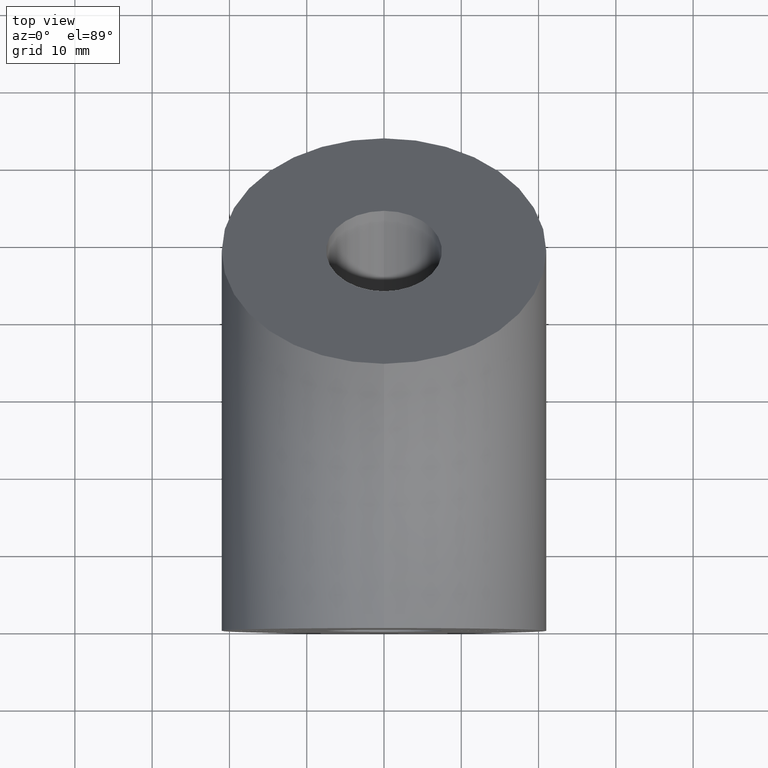
[diagram: clean part render]
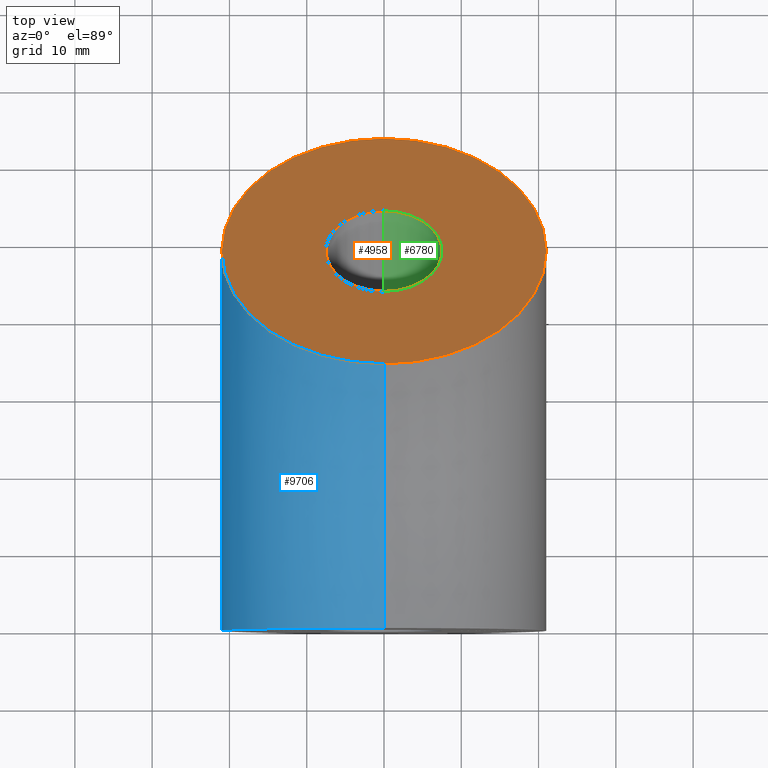
[diagram: same view with three faces highlighted in distinct colors, each labeled with its STEP entity id]
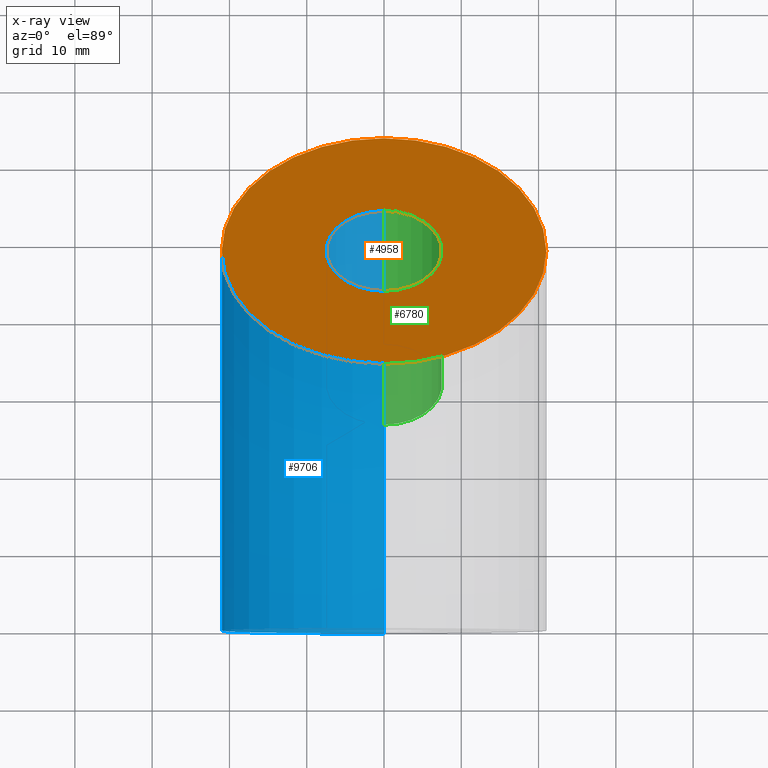
[diagram: x-ray of the same camera — body ghosted, the three highlighted faces saturated]
A machine part, top view with three faces highlighted in distinct colors.
The next image is the same camera in x-ray (body ghosted, the three faces saturated) — at least one of them is partly hidden behind the body in this view.
Their STEP definitions:

[orange] entity #4958 — the highlighted planar face has unit normal (0, 0.7071, 0.7071).
#315 = DIRECTION ( 'NONE',  ( 0.000000000000000000, -0.7071067811865439090, 0.7071067811865512365 ) ) ;
#350 = EDGE_CURVE ( 'NONE', #7985, #8511, #9840, .T. ) ;
#517 = DIRECTION ( 'NONE',  ( 0.000000000000000000, -0.7071067811865435759, 0.7071067811865514585 ) ) ;
#678 = FACE_OUTER_BOUND ( 'NONE', #10773, .T. ) ;
#815 = CIRCLE ( 'NONE', #3123, 7.499999999999995559 ) ;
#937 = FACE_BOUND ( 'NONE', #5001, .T. ) ;
#1069 = DIRECTION ( 'NONE',  ( 0.000000000000000000, -0.7071067811865436870, 0.7071067811865512365 ) ) ;
#1281 = CARTESIAN_POINT ( 'NONE',  ( -2.571758278209441661E-15, 33.94112549695410763, 35.05887450304553710 ) ) ;
#1317 = AXIS2_PLACEMENT_3D ( 'NONE', #6981, #11388, #9624 ) ;
#1473 = CARTESIAN_POINT ( 'NONE',  ( 0.000000000000000000, 63.63961030678893849, 5.360389693210381168 ) ) ;
#1974 = DIRECTION ( 'NONE',  ( 0.000000000000000000, 0.7071067811865512365, 0.7071067811865437980 ) ) ;
#3123 = AXIS2_PLACEMENT_3D ( 'NONE', #9414, #7689, #517 ) ;
#3130 = EDGE_CURVE ( 'NONE', #11001, #11010, #7497, .T. ) ;
#3176 = EDGE_CURVE ( 'NONE', #8511, #7985, #8033, .T. ) ;
#3212 = AXIS2_PLACEMENT_3D ( 'NONE', #4776, #8250, #315 ) ;
#3481 = CARTESIAN_POINT ( 'NONE',  ( 9.184850993605144000E-16, 54.09366876077061193, 14.90633123922881964 ) ) ;
#3764 = EDGE_CURVE ( 'NONE', #11010, #11001, #815, .T. ) ;
#3948 = AXIS2_PLACEMENT_3D ( 'NONE', #8712, #7199, #5577 ) ;
#4444 = AXIS2_PLACEMENT_3D ( 'NONE', #8211, #1974, #1069 ) ;
#4776 = CARTESIAN_POINT ( 'NONE',  ( 0.000000000000000000, 48.79036790187151951, 20.20963209812796890 ) ) ;
#4958 = ADVANCED_FACE ( 'NONE', ( #937, #678 ), #10065, .T. ) ;
#5001 = EDGE_LOOP ( 'NONE', ( #8692, #7545 ) ) ;
#5577 = DIRECTION ( 'NONE',  ( 0.000000000000000000, -0.7071067811865435759, 0.7071067811865514585 ) ) ;
#6981 = CARTESIAN_POINT ( 'NONE',  ( 0.000000000000000000, 48.79036790187151951, 20.20963209812796890 ) ) ;
#7099 = CARTESIAN_POINT ( 'NONE',  ( 0.000000000000000000, 43.48706704297246262, 25.51293295702707908 ) ) ;
#7199 = DIRECTION ( 'NONE',  ( -0.000000000000000000, 0.7071067811865512365, 0.7071067811865437980 ) ) ;
#7497 = CIRCLE ( 'NONE', #3948, 7.499999999999995559 ) ;
#7545 = ORIENTED_EDGE ( 'NONE', *, *, #3130, .F. ) ;
#7624 = ORIENTED_EDGE ( 'NONE', *, *, #3176, .T. ) ;
#7689 = DIRECTION ( 'NONE',  ( -0.000000000000000000, 0.7071067811865512365, 0.7071067811865437980 ) ) ;
#7985 = VERTEX_POINT ( 'NONE', #1473 ) ;
#8033 = CIRCLE ( 'NONE', #1317, 21.00000000000000000 ) ;
#8211 = CARTESIAN_POINT ( 'NONE',  ( 0.000000000000000000, 48.79036790187151951, 20.20963209812796890 ) ) ;
#8250 = DIRECTION ( 'NONE',  ( 0.000000000000000000, 0.7071067811865512365, 0.7071067811865439090 ) ) ;
#8511 = VERTEX_POINT ( 'NONE', #1281 ) ;
#8692 = ORIENTED_EDGE ( 'NONE', *, *, #3764, .F. ) ;
#8712 = CARTESIAN_POINT ( 'NONE',  ( 0.000000000000000000, 48.79036790187153372, 20.20963209812794759 ) ) ;
#9414 = CARTESIAN_POINT ( 'NONE',  ( 0.000000000000000000, 48.79036790187153372, 20.20963209812794759 ) ) ;
#9624 = DIRECTION ( 'NONE',  ( 0.000000000000000000, -0.7071067811865436870, 0.7071067811865512365 ) ) ;
#9840 = CIRCLE ( 'NONE', #4444, 21.00000000000000000 ) ;
#10065 = PLANE ( 'NONE',  #3212 ) ;
#10773 = EDGE_LOOP ( 'NONE', ( #7624, #11476 ) ) ;
#11001 = VERTEX_POINT ( 'NONE', #3481 ) ;
#11010 = VERTEX_POINT ( 'NONE', #7099 ) ;
#11388 = DIRECTION ( 'NONE',  ( 0.000000000000000000, 0.7071067811865512365, 0.7071067811865437980 ) ) ;
#11476 = ORIENTED_EDGE ( 'NONE', *, *, #350, .T. ) ;

[blue] entity #9706 — the highlighted toroidal blend (fillet) surface has major radius 69 mm and minor (blend) radius 21 mm.
#131 = CIRCLE ( 'NONE', #878, 90.00000000000001421 ) ;
#289 = DIRECTION ( 'NONE',  ( 0.000000000000000000, 0.000000000000000000, -1.000000000000000000 ) ) ;
#350 = EDGE_CURVE ( 'NONE', #7985, #8511, #9840, .T. ) ;
#396 = DIRECTION ( 'NONE',  ( 1.000000000000000000, 0.000000000000000000, 0.000000000000000000 ) ) ;
#596 = ORIENTED_EDGE ( 'NONE', *, *, #7973, .T. ) ;
#866 = VERTEX_POINT ( 'NONE', #4912 ) ;
#878 = AXIS2_PLACEMENT_3D ( 'NONE', #5020, #2337, #8604 ) ;
#1069 = DIRECTION ( 'NONE',  ( 0.000000000000000000, -0.7071067811865436870, 0.7071067811865512365 ) ) ;
#1211 = ORIENTED_EDGE ( 'NONE', *, *, #3694, .F. ) ;
#1281 = CARTESIAN_POINT ( 'NONE',  ( -2.571758278209441661E-15, 33.94112549695410763, 35.05887450304553710 ) ) ;
#1409 = FACE_OUTER_BOUND ( 'NONE', #6121, .T. ) ;
#1433 = DIRECTION ( 'NONE',  ( 0.000000000000000000, 1.000000000000000000, 0.000000000000000000 ) ) ;
#1473 = CARTESIAN_POINT ( 'NONE',  ( 0.000000000000000000, 63.63961030678893849, 5.360389693210381168 ) ) ;
#1974 = DIRECTION ( 'NONE',  ( 0.000000000000000000, 0.7071067811865512365, 0.7071067811865437980 ) ) ;
#2337 = DIRECTION ( 'NONE',  ( 1.000000000000000000, 0.000000000000000000, 0.000000000000000000 ) ) ;
#3543 = AXIS2_PLACEMENT_3D ( 'NONE', #5601, #6571, #10978 ) ;
#3694 = EDGE_CURVE ( 'NONE', #866, #7985, #131, .T. ) ;
#4444 = AXIS2_PLACEMENT_3D ( 'NONE', #8211, #1974, #1069 ) ;
#4754 = TOROIDAL_SURFACE ( 'NONE', #7002, 69.00000000000000000, 21.00000000000000000 ) ;
#4912 = CARTESIAN_POINT ( 'NONE',  ( 0.000000000000000000, 0.000000000000000000, -21.00000000000000355 ) ) ;
#5020 = CARTESIAN_POINT ( 'NONE',  ( 0.000000000000000000, 0.000000000000000000, 69.00000000000000000 ) ) ;
#5467 = ORIENTED_EDGE ( 'NONE', *, *, #350, .F. ) ;
#5601 = CARTESIAN_POINT ( 'NONE',  ( -2.571758278209441661E-15, 0.000000000000000000, 69.00000000000000000 ) ) ;
#5746 = ORIENTED_EDGE ( 'NONE', *, *, #10628, .T. ) ;
#5977 = CIRCLE ( 'NONE', #6923, 21.00000000000000000 ) ;
#6121 = EDGE_LOOP ( 'NONE', ( #1211, #596, #5746, #5467 ) ) ;
#6571 = DIRECTION ( 'NONE',  ( 1.000000000000000000, 0.000000000000000000, 0.000000000000000000 ) ) ;
#6923 = AXIS2_PLACEMENT_3D ( 'NONE', #8594, #1433, #11122 ) ;
#7002 = AXIS2_PLACEMENT_3D ( 'NONE', #11005, #396, #289 ) ;
#7793 = CIRCLE ( 'NONE', #3543, 48.00000000000000000 ) ;
#7973 = EDGE_CURVE ( 'NONE', #866, #10686, #5977, .T. ) ;
#7985 = VERTEX_POINT ( 'NONE', #1473 ) ;
#8211 = CARTESIAN_POINT ( 'NONE',  ( 0.000000000000000000, 48.79036790187151951, 20.20963209812796890 ) ) ;
#8511 = VERTEX_POINT ( 'NONE', #1281 ) ;
#8594 = CARTESIAN_POINT ( 'NONE',  ( 0.000000000000000000, 0.000000000000000000, 0.000000000000000000 ) ) ;
#8604 = DIRECTION ( 'NONE',  ( 0.000000000000000000, 0.000000000000000000, -1.000000000000000000 ) ) ;
#9706 = ADVANCED_FACE ( 'NONE', ( #1409 ), #4754, .T. ) ;
#9840 = CIRCLE ( 'NONE', #4444, 21.00000000000000000 ) ;
#9965 = CARTESIAN_POINT ( 'NONE',  ( 0.000000000000000000, 0.000000000000000000, 21.00000000000000000 ) ) ;
#10628 = EDGE_CURVE ( 'NONE', #10686, #8511, #7793, .T. ) ;
#10686 = VERTEX_POINT ( 'NONE', #9965 ) ;
#10978 = DIRECTION ( 'NONE',  ( 0.000000000000000000, 0.000000000000000000, -1.000000000000000000 ) ) ;
#11005 = CARTESIAN_POINT ( 'NONE',  ( 0.000000000000000000, 0.000000000000000000, 69.00000000000000000 ) ) ;
#11122 = DIRECTION ( 'NONE',  ( 0.000000000000000000, 0.000000000000000000, 1.000000000000000000 ) ) ;

[green] entity #6780 — the highlighted cylindrical surface (partial cylindrical patch) has radius 7.5 mm, axis along (-0, 0.7071, 0.7071).
#169 = EDGE_CURVE ( 'NONE', #10878, #1198, #3502, .T. ) ;
#517 = DIRECTION ( 'NONE',  ( 0.000000000000000000, -0.7071067811865435759, 0.7071067811865514585 ) ) ;
#540 = DIRECTION ( 'NONE',  ( 0.000000000000000000, -0.7071067811865437980, 0.7071067811865512365 ) ) ;
#661 = ORIENTED_EDGE ( 'NONE', *, *, #3764, .T. ) ;
#815 = CIRCLE ( 'NONE', #3123, 7.499999999999995559 ) ;
#907 = DIRECTION ( 'NONE',  ( -0.000000000000000000, 0.7071067811865512365, 0.7071067811865439090 ) ) ;
#1198 = VERTEX_POINT ( 'NONE', #7359 ) ;
#2419 = ORIENTED_EDGE ( 'NONE', *, *, #8859, .F. ) ;
#3123 = AXIS2_PLACEMENT_3D ( 'NONE', #9414, #7689, #517 ) ;
#3265 = EDGE_LOOP ( 'NONE', ( #2419, #3676, #10296, #661 ) ) ;
#3324 = DIRECTION ( 'NONE',  ( -0.000000000000000000, 0.7071067811865512365, 0.7071067811865437980 ) ) ;
#3481 = CARTESIAN_POINT ( 'NONE',  ( 9.184850993605144000E-16, 54.09366876077061193, 14.90633123922881964 ) ) ;
#3502 = CIRCLE ( 'NONE', #5852, 7.499999999999993783 ) ;
#3537 = CARTESIAN_POINT ( 'NONE',  ( 0.000000000000000000, 43.48706704297246262, 25.51293295702707908 ) ) ;
#3676 = ORIENTED_EDGE ( 'NONE', *, *, #169, .F. ) ;
#3764 = EDGE_CURVE ( 'NONE', #11010, #11001, #815, .T. ) ;
#3940 = DIRECTION ( 'NONE',  ( -0.000000000000000000, 0.7071067811865512365, 0.7071067811865437980 ) ) ;
#3963 = AXIS2_PLACEMENT_3D ( 'NONE', #7600, #3940, #540 ) ;
#4214 = CARTESIAN_POINT ( 'NONE',  ( 0.000000000000000000, 26.51650429449523116, 8.542370208550025268 ) ) ;
#4903 = VECTOR ( 'NONE', #10181, 999.9999999999998863 ) ;
#4920 = CARTESIAN_POINT ( 'NONE',  ( 9.184850993605144000E-16, 54.09366876077061193, 14.90633123922881786 ) ) ;
#5646 = VECTOR ( 'NONE', #907, 999.9999999999998863 ) ;
#5793 = CYLINDRICAL_SURFACE ( 'NONE', #3963, 7.499999999999993783 ) ;
#5852 = AXIS2_PLACEMENT_3D ( 'NONE', #10511, #3324, #9554 ) ;
#6780 = ADVANCED_FACE ( 'NONE', ( #7166 ), #5793, .F. ) ;
#7084 = EDGE_CURVE ( 'NONE', #10878, #11010, #10907, .T. ) ;
#7099 = CARTESIAN_POINT ( 'NONE',  ( 0.000000000000000000, 43.48706704297246262, 25.51293295702707908 ) ) ;
#7166 = FACE_OUTER_BOUND ( 'NONE', #3265, .T. ) ;
#7359 = CARTESIAN_POINT ( 'NONE',  ( 9.184850993605142028E-16, 37.12310601229337692, -2.064231509248234619 ) ) ;
#7600 = CARTESIAN_POINT ( 'NONE',  ( 0.000000000000000000, 48.79036790187153372, 20.20963209812794759 ) ) ;
#7689 = DIRECTION ( 'NONE',  ( -0.000000000000000000, 0.7071067811865512365, 0.7071067811865437980 ) ) ;
#8362 = LINE ( 'NONE', #4920, #4903 ) ;
#8859 = EDGE_CURVE ( 'NONE', #1198, #11001, #8362, .T. ) ;
#9414 = CARTESIAN_POINT ( 'NONE',  ( 0.000000000000000000, 48.79036790187153372, 20.20963209812794759 ) ) ;
#9554 = DIRECTION ( 'NONE',  ( 0.000000000000000000, -0.7071067811865437980, 0.7071067811865512365 ) ) ;
#10181 = DIRECTION ( 'NONE',  ( -0.000000000000000000, 0.7071067811865512365, 0.7071067811865439090 ) ) ;
#10296 = ORIENTED_EDGE ( 'NONE', *, *, #7084, .T. ) ;
#10511 = CARTESIAN_POINT ( 'NONE',  ( 0.000000000000000000, 31.81980515339430227, 3.239069349650895546 ) ) ;
#10878 = VERTEX_POINT ( 'NONE', #4214 ) ;
#10907 = LINE ( 'NONE', #3537, #5646 ) ;
#11001 = VERTEX_POINT ( 'NONE', #3481 ) ;
#11010 = VERTEX_POINT ( 'NONE', #7099 ) ;